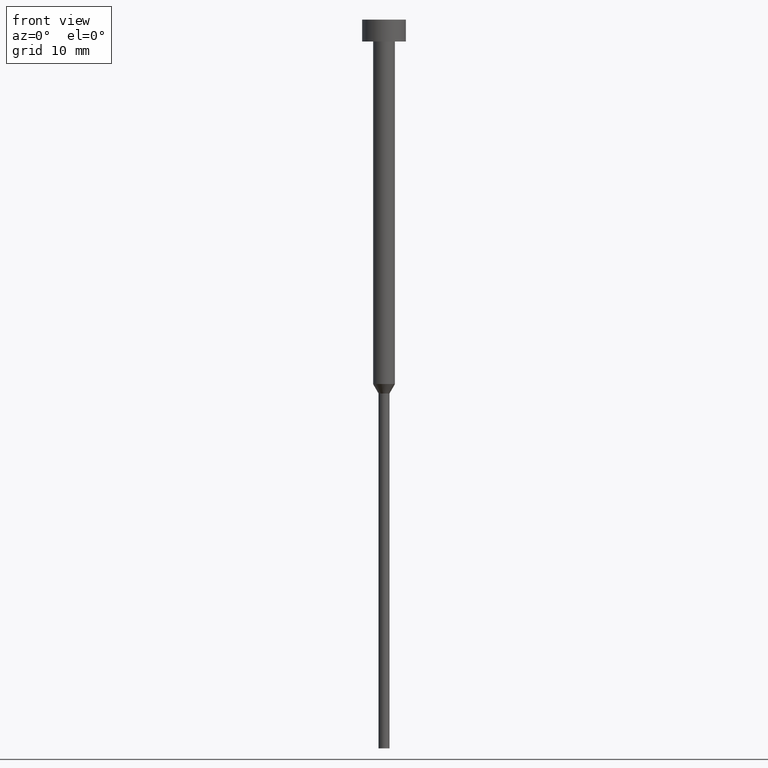
[diagram: clean part render]
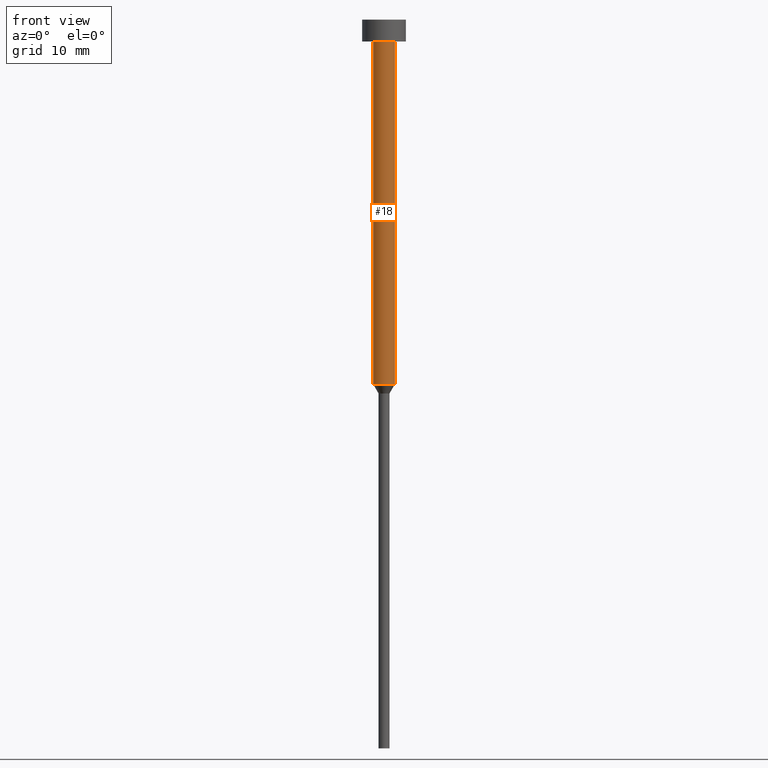
[diagram: same view with one face highlighted and labeled with its STEP entity id]
A machine part, front view. The second image highlights one B-rep face of the part: STEP entity #18.
In plain terms, the highlighted cylindrical surface (edge-blend (fillet) strip) has radius 1.5 mm, axis along (-0, -0, 1).
Its self-contained STEP definition (entity closure, byte-faithful):
#5 = VERTEX_POINT ( 'NONE', #287 ) ;
#7 = AXIS2_PLACEMENT_3D ( 'NONE', #312, #101, #75 ) ;
#12 = CARTESIAN_POINT ( 'NONE',  ( -1.500000000000000000, 1.836970198721029934E-16, -3.000000000000000888 ) ) ;
#18 = ADVANCED_FACE ( 'NONE', ( #289 ), #345, .T. ) ;
#33 = DIRECTION ( 'NONE',  ( 1.000000000000000000, 0.000000000000000000, 0.000000000000000000 ) ) ;
#35 = ORIENTED_EDGE ( 'NONE', *, *, #55, .F. ) ;
#39 = CARTESIAN_POINT ( 'NONE',  ( 1.500000000000000000, 0.000000000000000000, -3.000000000000000888 ) ) ;
#48 = DIRECTION ( 'NONE',  ( 1.000000000000000000, 0.000000000000000000, 0.000000000000000000 ) ) ;
#50 = CARTESIAN_POINT ( 'NONE',  ( -1.500000000000000000, 1.836970198721029934E-16, 0.000000000000000000 ) ) ;
#54 = CARTESIAN_POINT ( 'NONE',  ( 1.500000000000000000, 0.000000000000000000, 0.000000000000000000 ) ) ;
#55 = EDGE_CURVE ( 'NONE', #5, #270, #211, .T. ) ;
#58 = ORIENTED_EDGE ( 'NONE', *, *, #213, .T. ) ;
#67 = EDGE_CURVE ( 'NONE', #5, #271, #95, .T. ) ;
#75 = DIRECTION ( 'NONE',  ( 1.000000000000000000, 0.000000000000000000, 0.000000000000000000 ) ) ;
#87 = CIRCLE ( 'NONE', #269, 1.500000000000000000 ) ;
#95 = CIRCLE ( 'NONE', #232, 1.500000000000000000 ) ;
#101 = DIRECTION ( 'NONE',  ( -0.000000000000000000, -0.000000000000000000, 1.000000000000000000 ) ) ;
#138 = VECTOR ( 'NONE', #291, 1000.000000000000000 ) ;
#160 = DIRECTION ( 'NONE',  ( -0.000000000000000000, -0.000000000000000000, 1.000000000000000000 ) ) ;
#175 = CARTESIAN_POINT ( 'NONE',  ( 1.500000000000000000, 0.000000000000000000, -50.00000000000000000 ) ) ;
#190 = VECTOR ( 'NONE', #320, 1000.000000000000000 ) ;
#204 = ORIENTED_EDGE ( 'NONE', *, *, #67, .T. ) ;
#211 = LINE ( 'NONE', #50, #138 ) ;
#213 = EDGE_CURVE ( 'NONE', #271, #324, #293, .T. ) ;
#232 = AXIS2_PLACEMENT_3D ( 'NONE', #263, #160, #48 ) ;
#248 = EDGE_CURVE ( 'NONE', #270, #324, #87, .T. ) ;
#263 = CARTESIAN_POINT ( 'NONE',  ( 0.000000000000000000, 0.000000000000000000, -50.00000000000000000 ) ) ;
#264 = EDGE_LOOP ( 'NONE', ( #35, #204, #58, #295 ) ) ;
#269 = AXIS2_PLACEMENT_3D ( 'NONE', #292, #273, #33 ) ;
#270 = VERTEX_POINT ( 'NONE', #12 ) ;
#271 = VERTEX_POINT ( 'NONE', #175 ) ;
#273 = DIRECTION ( 'NONE',  ( -0.000000000000000000, -0.000000000000000000, 1.000000000000000000 ) ) ;
#287 = CARTESIAN_POINT ( 'NONE',  ( -1.500000000000000000, 1.836970198721029934E-16, -50.00000000000000000 ) ) ;
#289 = FACE_OUTER_BOUND ( 'NONE', #264, .T. ) ;
#291 = DIRECTION ( 'NONE',  ( -0.000000000000000000, -0.000000000000000000, 1.000000000000000000 ) ) ;
#292 = CARTESIAN_POINT ( 'NONE',  ( 0.000000000000000000, 0.000000000000000000, -3.000000000000000888 ) ) ;
#293 = LINE ( 'NONE', #54, #190 ) ;
#295 = ORIENTED_EDGE ( 'NONE', *, *, #248, .F. ) ;
#312 = CARTESIAN_POINT ( 'NONE',  ( 0.000000000000000000, 0.000000000000000000, 0.000000000000000000 ) ) ;
#320 = DIRECTION ( 'NONE',  ( -0.000000000000000000, -0.000000000000000000, 1.000000000000000000 ) ) ;
#324 = VERTEX_POINT ( 'NONE', #39 ) ;
#345 = CYLINDRICAL_SURFACE ( 'NONE', #7, 1.500000000000000000 ) ;